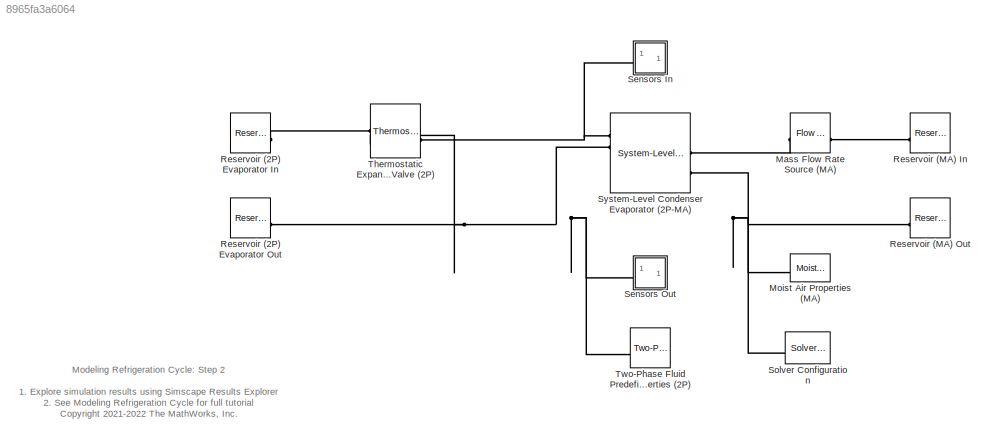
MODEL slx_8965fa3a6064
KIND model
CONFIG AbsTol = 1e-3
CONFIG EnableMultiTasking = off
CONFIG FixedStep = auto
CONFIG MaxStep = auto
CONFIG MinStep = auto
CONFIG RelTol = 1e-3
CONFIG SampleTimeConstraint = Unconstrained
CONFIG SolverName = VariableStepAuto
CONFIG StartTime = 0.0
CONFIG StopTime = 3600
BLOCK [Reference] Mass Flow Rate Source (MA)  REF=fl_lib/Moist Air/Sources/Flow Rate Source
(MA)
  SourceBlock = fl_lib/Moist Air/Sources/Flow Rate Source\n(MA)
  SourceType = Flow Rate Source\n(MA)
BLOCK [Reference] Moist Air Properties (MA)  REF=fl_lib/Moist Air/Utilities/Moist Air Properties
(MA)
  SourceBlock = fl_lib/Moist Air/Utilities/Moist Air Properties\n(MA)
  SourceType = Moist Air Properties\n(MA)
BLOCK [Reference] Reservoir (2P) Evaporator In  REF=fl_lib/Two-Phase Fluid/Elements/Reservoir (2P)
  SourceBlock = fl_lib/Two-Phase Fluid/Elements/Reservoir (2P)
  SourceType = Reservoir (2P)
BLOCK [Reference] Reservoir (2P) Evaporator Out  REF=fl_lib/Two-Phase Fluid/Elements/Reservoir (2P)
  SourceBlock = fl_lib/Two-Phase Fluid/Elements/Reservoir (2P)
  SourceType = Reservoir (2P)
BLOCK [Reference] Reservoir (MA) In  REF=fl_lib/Moist Air/Elements/Reservoir (MA)
  SourceBlock = fl_lib/Moist Air/Elements/Reservoir (MA)
  SourceType = Reservoir (MA)
BLOCK [Reference] Reservoir (MA) Out  REF=fl_lib/Moist Air/Elements/Reservoir (MA)
  SourceBlock = fl_lib/Moist Air/Elements/Reservoir (MA)
  SourceType = Reservoir (MA)
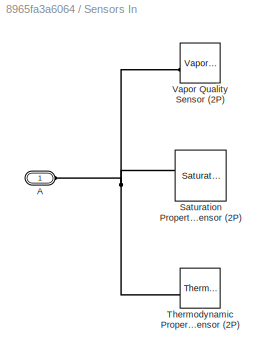
BLOCK [SubSystem] Sensors In
BLOCK [PMIOPort] Sensors In/A
  Side = Left
BLOCK [Reference] Sensors In/Saturation Properties Sensor (2P)  REF=fl_lib/Two-Phase Fluid/Sensors/Saturation
Properties Sensor
(2P)
  SourceBlock = fl_lib/Two-Phase Fluid/Sensors/Saturation\nProperties Sensor\n(2P)
  SourceType = Saturation\nProperties Sensor\n(2P)
BLOCK [Reference] Sensors In/Thermodynamic Properties Sensor (2P)  REF=fl_lib/Two-Phase Fluid/Sensors/Thermodynamic
Properties Sensor
(2P)
  SourceBlock = fl_lib/Two-Phase Fluid/Sensors/Thermodynamic\nProperties Sensor\n(2P)
  SourceType = Thermodynamic\nProperties Sensor\n(2P)
BLOCK [Reference] Sensors In/Vapor Quality Sensor (2P)  REF=fl_lib/Two-Phase Fluid/Sensors/Vapor Quality Sensor
(2P)
  SourceBlock = fl_lib/Two-Phase Fluid/Sensors/Vapor Quality Sensor\n(2P)
  SourceType = Vapor Quality Sensor\n(2P)
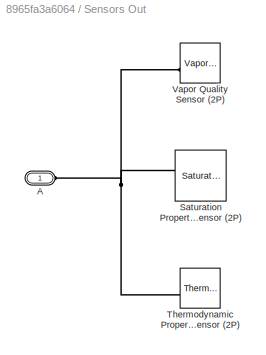
BLOCK [SubSystem] Sensors Out
BLOCK [PMIOPort] Sensors Out/A
  Side = Left
BLOCK [Reference] Sensors Out/Saturation Properties Sensor (2P)  REF=fl_lib/Two-Phase Fluid/Sensors/Saturation
Properties Sensor
(2P)
  SourceBlock = fl_lib/Two-Phase Fluid/Sensors/Saturation\nProperties Sensor\n(2P)
  SourceType = Saturation\nProperties Sensor\n(2P)
BLOCK [Reference] Sensors Out/Thermodynamic Properties Sensor (2P)  REF=fl_lib/Two-Phase Fluid/Sensors/Thermodynamic
Properties Sensor
(2P)
  SourceBlock = fl_lib/Two-Phase Fluid/Sensors/Thermodynamic\nProperties Sensor\n(2P)
  SourceType = Thermodynamic\nProperties Sensor\n(2P)
BLOCK [Reference] Sensors Out/Vapor Quality Sensor (2P)  REF=fl_lib/Two-Phase Fluid/Sensors/Vapor Quality Sensor
(2P)
  SourceBlock = fl_lib/Two-Phase Fluid/Sensors/Vapor Quality Sensor\n(2P)
  SourceType = Vapor Quality Sensor\n(2P)
BLOCK [Reference] Solver Configuration  REF=nesl_utility/Solver
Configuration
  SourceBlock = nesl_utility/Solver\nConfiguration
  SourceType = Solver\nConfiguration
BLOCK [Reference] System-Level Condenser Evaporator (2P-MA)  REF=SimscapeFluids_lib/Heat Exchangers/Two-Phase Fluid -
Moist Air/System-Level
Condenser Evaporator
(2P-MA)
  SourceBlock = SimscapeFluids_lib/Heat Exchangers/Two-Phase Fluid -\nMoist Air/System-Level\nCondenser Evaporator\n(2P-MA)
  SourceType = System-Level\nCondenser Evaporator\n(2P-MA)
BLOCK [Reference] Thermostatic Expansion Valve (2P)  REF=SimscapeFluids_lib/Two-Phase Fluid/Valves & Orifices/Flow Control Valves/Thermostatic
Expansion Valve (2P)
  SourceBlock = SimscapeFluids_lib/Two-Phase Fluid/Valves & Orifices/Flow Control Valves/Thermostatic\nExpansion Valve (2P)
  SourceType = Thermostatic\nExpansion Valve (2P)
BLOCK [Reference] Two-Phase Fluid Predefined Properties (2P)  REF=SimscapeFluids_lib/Two-Phase Fluid/Utilities/Two-Phase Fluid
Predefined
Properties (2P)
  SourceBlock = SimscapeFluids_lib/Two-Phase Fluid/Utilities/Two-Phase Fluid\nPredefined\nProperties (2P)
  SourceType = Two-Phase Fluid\nPredefined\nProperties (2P)
ANNOTATION (root): 1. Explore simulation results using Simscape Results Explorer 2. See Modeling Refrigeration Cycle for full tutorial <copyright redacted>
ANNOTATION (root): Modeling Refrigeration Cycle: Step 2
PLINE Mass Flow Rate Source (MA):LConn1 -- Reservoir (MA) In:LConn1
PLINE Mass Flow Rate Source (MA):RConn1 -- System-Level Condenser Evaporator (2P-MA):RConn1
PNET net1: Moist Air Properties (MA):RConn1 -- Reservoir (MA) Out:LConn1 -- Solver Configuration:RConn1 -- System-Level Condenser Evaporator (2P-MA):RConn2
PLINE Reservoir (2P) Evaporator In:LConn1 -- Thermostatic Expansion Valve (2P):LConn1
PNET net2: Reservoir (2P) Evaporator Out:LConn1 -- Sensors Out:LConn1 -- System-Level Condenser Evaporator (2P-MA):LConn2 -- Thermostatic Expansion Valve (2P):LConn2 -- Two-Phase Fluid Predefined Properties (2P):RConn1
PNET net3: Sensors In/A:RConn1 -- Sensors In/Saturation Properties Sensor (2P):LConn1 -- Sensors In/Thermodynamic Properties Sensor (2P):LConn1 -- Sensors In/Vapor Quality Sensor (2P):LConn1
PNET net4: Sensors In:LConn1 -- System-Level Condenser Evaporator (2P-MA):LConn1 -- Thermostatic Expansion Valve (2P):RConn1
PNET net5: Sensors Out/A:RConn1 -- Sensors Out/Saturation Properties Sensor (2P):LConn1 -- Sensors Out/Thermodynamic Properties Sensor (2P):LConn1 -- Sensors Out/Vapor Quality Sensor (2P):LConn1
note: PNET lines group multi-terminal physical nets as a canonical sorted terminal list (undirected conserving connections); 2-terminal nets keep the pairwise PLINE form
